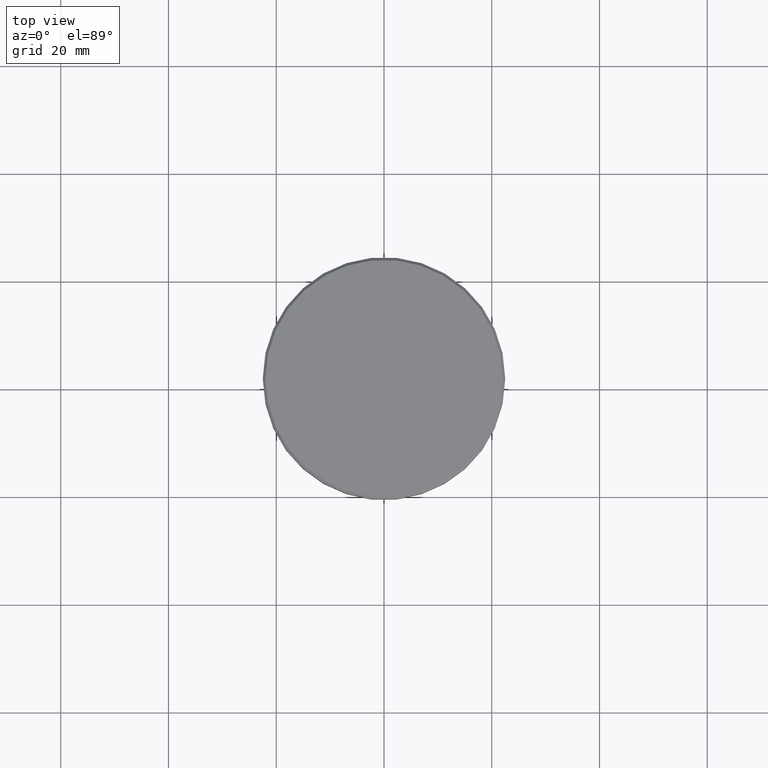
[diagram: clean part render]
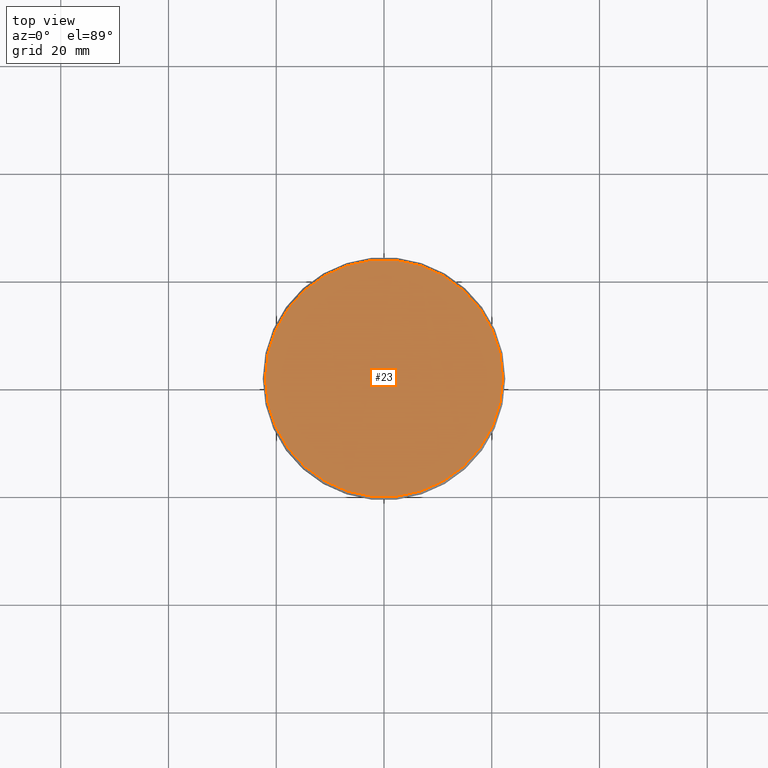
[diagram: same view with one face highlighted and labeled with its STEP entity id]
A machine part, top view. The second image highlights one B-rep face of the part: STEP entity #23.
In plain terms, the highlighted planar face has unit normal (0, -0, 1).
Its self-contained STEP definition (entity closure, byte-faithful):
#23 = ADVANCED_FACE ( 'NONE', ( #1063 ), #1069, .T. ) ;
#39 = ORIENTED_EDGE ( 'NONE', *, *, #196, .T. ) ;
#131 = CARTESIAN_POINT ( 'NONE',  ( 0.000000000000000000, 0.000000000000000000, 0.000000000000000000 ) ) ;
#194 = VERTEX_POINT ( 'NONE', #288 ) ;
#196 = EDGE_CURVE ( 'NONE', #687, #194, #1157, .T. ) ;
#213 = DIRECTION ( 'NONE',  ( -0.000000000000000000, -0.000000000000000000, 1.000000000000000000 ) ) ;
#250 = DIRECTION ( 'NONE',  ( 1.000000000000000000, 0.000000000000000000, 0.000000000000000000 ) ) ;
#288 = CARTESIAN_POINT ( 'NONE',  ( 22.00000000000002132, 2.724839128102862174E-15, 0.000000000000000000 ) ) ;
#378 = DIRECTION ( 'NONE',  ( 1.000000000000000000, 0.000000000000000000, 0.000000000000000000 ) ) ;
#414 = DIRECTION ( 'NONE',  ( 0.000000000000000000, -0.000000000000000000, 1.000000000000000000 ) ) ;
#425 = AXIS2_PLACEMENT_3D ( 'NONE', #1118, #213, #569 ) ;
#495 = DIRECTION ( 'NONE',  ( -0.000000000000000000, -0.000000000000000000, 1.000000000000000000 ) ) ;
#544 = CIRCLE ( 'NONE', #425, 22.00000000000002132 ) ;
#569 = DIRECTION ( 'NONE',  ( 1.000000000000000000, 0.000000000000000000, 0.000000000000000000 ) ) ;
#687 = VERTEX_POINT ( 'NONE', #1106 ) ;
#804 = ORIENTED_EDGE ( 'NONE', *, *, #1095, .T. ) ;
#895 = EDGE_LOOP ( 'NONE', ( #39, #804 ) ) ;
#899 = AXIS2_PLACEMENT_3D ( 'NONE', #965, #414, #250 ) ;
#933 = AXIS2_PLACEMENT_3D ( 'NONE', #131, #495, #378 ) ;
#965 = CARTESIAN_POINT ( 'NONE',  ( 0.000000000000000000, 0.000000000000000000, 0.000000000000000000 ) ) ;
#1063 = FACE_OUTER_BOUND ( 'NONE', #895, .T. ) ;
#1069 = PLANE ( 'NONE',  #899 ) ;
#1095 = EDGE_CURVE ( 'NONE', #194, #687, #544, .T. ) ;
#1106 = CARTESIAN_POINT ( 'NONE',  ( -22.00000000000002132, 0.000000000000000000, 0.000000000000000000 ) ) ;
#1118 = CARTESIAN_POINT ( 'NONE',  ( 0.000000000000000000, 0.000000000000000000, 0.000000000000000000 ) ) ;
#1157 = CIRCLE ( 'NONE', #933, 22.00000000000002132 ) ;